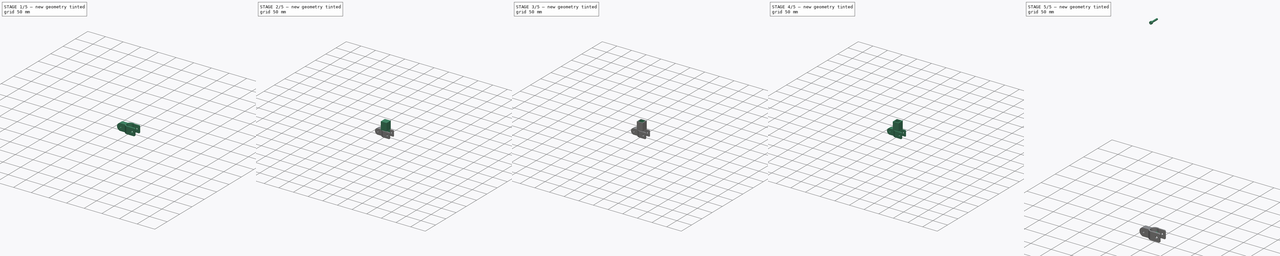
[diagram: build sequence overview — one tinted view per stage of 5, left to right]
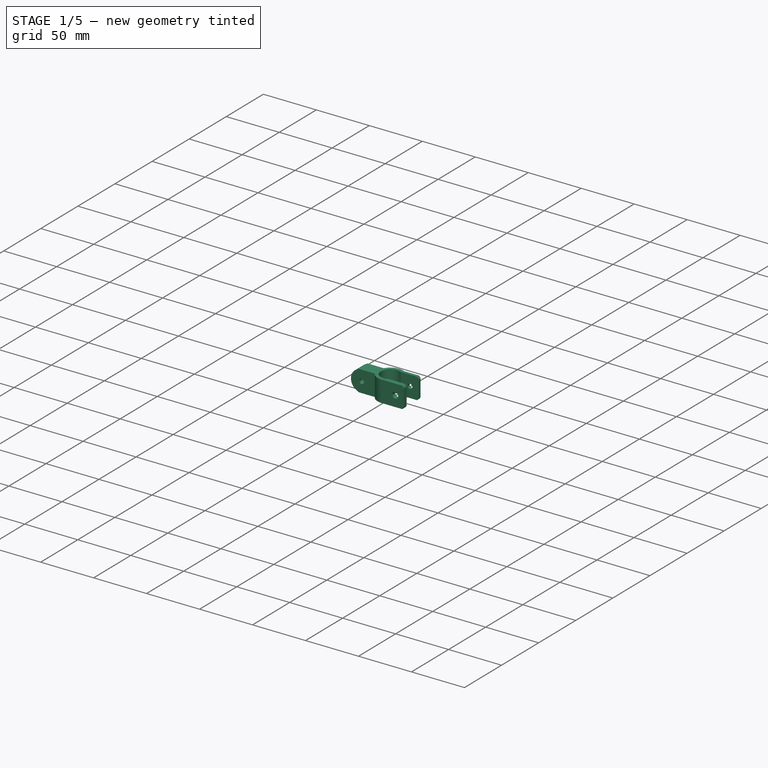
[diagram: stage 1 of 5 — iso view after this stage's code; geometry added in this stage tinted green]
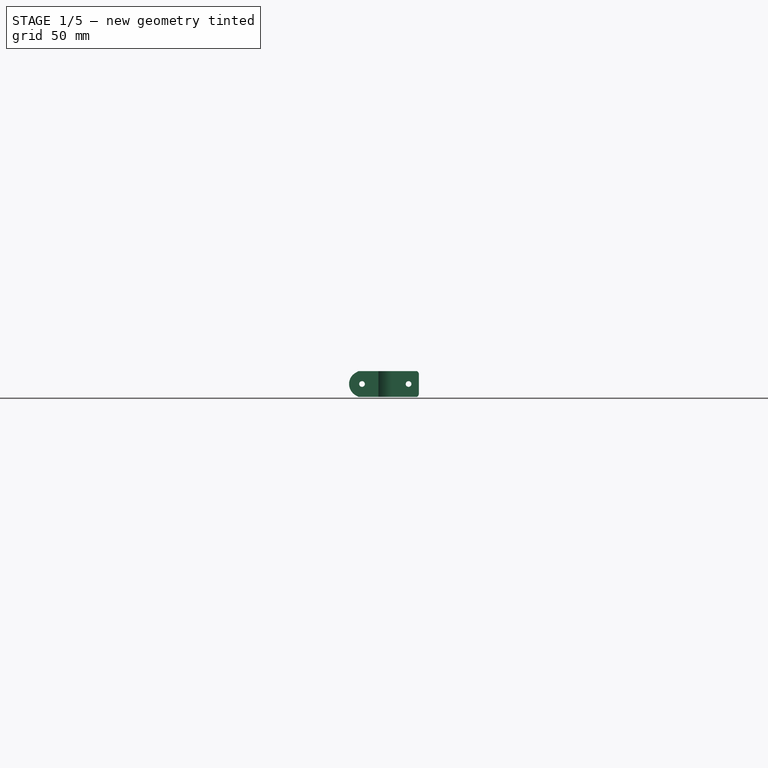
[diagram: stage 1 of 5 — front view after this stage's code; geometry added in this stage tinted green]
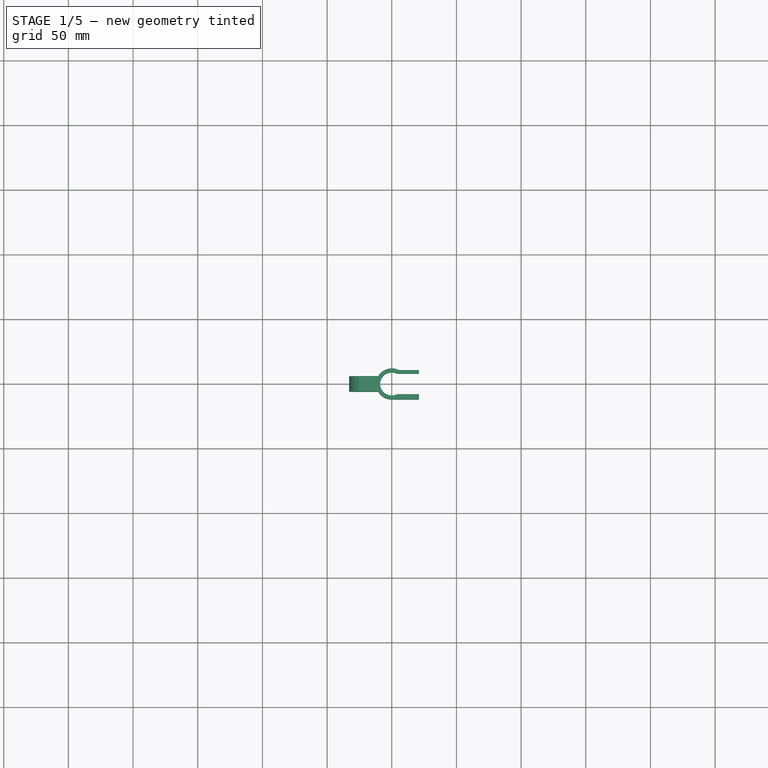
[diagram: stage 1 of 5 — top view after this stage's code; geometry added in this stage tinted green]
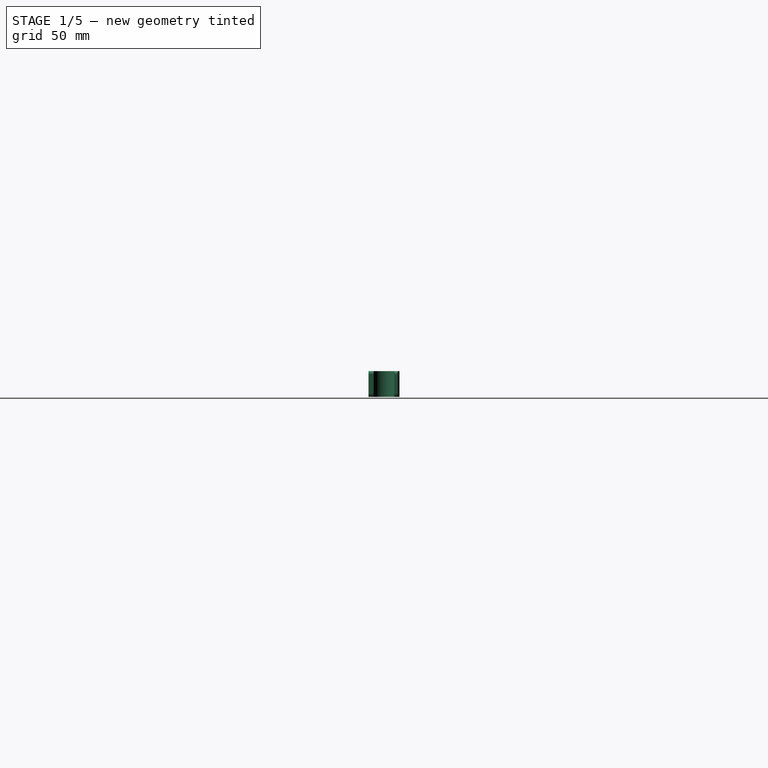
[diagram: stage 1 of 5 — right view after this stage's code; geometry added in this stage tinted green]
FCSTD DOCUMENT  (FreeCAD 0.21RUnknown)
Label: BracePole
License: All rights reserved
LicenseURL: http://en.wikipedia.org/wiki/All_rights_reserved
objects: PartDesign::CoordinateSystem×13, Sketcher::SketchObject×11, App::Link×8, PartDesign::Pocket×5, PartDesign::Body×3, App::DocumentObjectGroup×3, PartDesign::Pad×2, PartDesign::AdditiveCylinder×2, Part::FeaturePython×2, PartDesign::Chamfer×2, PartDesign::AdditiveBox×1, PartDesign::PolarPattern×1, PartDesign::Plane×1, App::FeaturePython×1, App::Part×1
note: 55 computed .brp shape members not serialized (recipe doc carries the construction recipe); baked Part::Feature solids carry a one-line shape summary decoded from their .brp
EXTERNAL_REF file=Common.FCStd obj=Spreadsheet
EXTERNAL_REF file=Common.FCStd obj=Local_CS318
EXTERNAL_REF file=Common.FCStd obj=Body022061
EXTERNAL_REF file=Common.FCStd obj=Local_CS237
EXTERNAL_REF file=Common.FCStd obj=Body005

FEATURE [Sketcher::SketchObject] Sketch194  label="SideArm_PoleClamp_Base_Sketch"
  FullyConstrained = true
  MapMode = 5
  Support = -> [XY_Plane094]
  expr: .Constraints.innerdia = <<Common>>#<<Parameters>>.sec_poledia
  expr: Constraints[23] = <<Common>>#<<Parameters>>.sec_poledia - 2
  expr: Constraints[27] = <<Common>>#<<Parameters>>.sec_sidebolt * 2
  expr: Constraints[31] = <<Common>>#<<Parameters>>.sec_fthick
  expr: Constraints[32] = <<Common>>#<<Parameters>>.pri_bracepivotdia - (<<Common>>#<<Parameters>>.sec_fthick + 1) * 2
  expr: Constraints[36] = <<Common>>#<<Parameters>>.sec_poledia
  expr: Constraints[39] = <<Common>>#<<Parameters>>.sec_sidebolt
  expr: Constraints[42] = <<Common>>#<<Parameters>>.sec_fthick + 1
  expr: Constraints[43] = <<Common>>#<<Parameters>>.pri_bracepivotdia + <<Common>>#<<Parameters>>.sec_fthick + <<Common>>#<<Parameters>>.pri_poledia / 2
  sketch-geometry (17):
    g0: ArcOfCircle CenterX=0 CenterY=0 CenterZ=0 NormalX=0 NormalY=0 NormalZ=1 AngleXU=0 Radius=9 StartAngle=1.09491 EndAngle=5.18827
    g1: LineSegment StartX=4.12311 StartY=8 StartZ=0 EndX=21 EndY=8 EndZ=0
    g2: LineSegment StartX=4.12311 StartY=-8 StartZ=0 EndX=21 EndY=-8 EndZ=0
    g3: LineSegment StartX=21 StartY=8 StartZ=0 EndX=21 EndY=10.6667 EndZ=0
    g4: LineSegment StartX=21 StartY=10.6667 StartZ=0 EndX=5.49747 EndY=10.6667 EndZ=0
    g5: ArcOfCircle CenterX=0 CenterY=0 CenterZ=0 NormalX=0 NormalY=0 NormalZ=1 AngleXU=0 Radius=12 StartAngle=1.09491 EndAngle=2.61799
    g6: LineSegment StartX=-10.3923 StartY=6 StartZ=0 EndX=-33 EndY=6 EndZ=0
    g7: LineSegment StartX=-33 StartY=-6 StartZ=0 EndX=-10.3923 EndY=-6 EndZ=0
    g8: LineSegment StartX=21 StartY=-8 StartZ=0 EndX=21 EndY=-12 EndZ=0
    g9: ArcOfCircle CenterX=0 CenterY=0 CenterZ=0 NormalX=0 NormalY=0 NormalZ=1 AngleXU=0 Radius=12 StartAngle=3.66519 EndAngle=4.71239
    g10: LineSegment StartX=-3.33968e-05 StartY=-12 StartZ=0 EndX=21 EndY=-12 EndZ=0
    g11: GeomPoint X=13 Y=10.6667 Z=0
    g12: LineSegment StartX=0 StartY=0 StartZ=0 EndX=5.49747 EndY=10.6667 EndZ=0
    g13: GeomPoint X=-9 Y=0 Z=0
    g14: Circle CenterX=0 CenterY=0 CenterZ=0 NormalX=0 NormalY=0 NormalZ=1 AngleXU=0 Radius=9
    g15: GeomPoint X=9 Y=0 Z=0
    g16: LineSegment StartX=-33 StartY=6 StartZ=0 EndX=-33 EndY=-6 EndZ=0
  constraints (44):
    c: Coincident(g0,g-1)
    c: Diameter(g0) = 18  'innerdia'
    c: Coincident(g1,g0)
    c: Horizontal(g1)
    c: Coincident(g2,g0)
    c: Horizontal(g2)
    c: Coincident(g3,g1)
    c: Vertical(g3)
    c: Horizontal(g4)
    c: Coincident(g5,g0)
    c: Coincident(g5,g4)
    c: Coincident(g6,g5)
    c: Horizontal(g6)
    c: Horizontal(g7)
    c: Coincident(g8,g2)
    c: Vertical(g8)
    c: Coincident(g9,g0)
    c: Coincident(g9,g7)
    c: Coincident(g10,g9)
    c: Horizontal(g10)
    c: Equal(g9,g5)
    c: Symmetric(g6,g7,g-1)
    c: Symmetric(g1,g2,g-1)
    c: DistanceY(g2,g1) = 16
    c: Coincident(g3,g4)
    c: Coincident(g8,g10)
    c: PointOnObject(g11,g4)
    c: DistanceX(g11,g3) = 8
    c: Coincident(g12,g0)
    c: Coincident(g12,g4)
    c: PointOnObject(g0,g12)
    c: Distance(g0,g4) = 3
    c: DistanceY(g7,g6) = 12
    c: PointOnObject(g13,g0)
    c: PointOnObject(g13,g-1)
    c: Coincident(g14,g0)
    c: Diameter(g14) = 18
    c: PointOnObject(g15,g14)
    c: PointOnObject(g15,g-1)
    c: DistanceX(g15,g11) = 4
    c: Coincident(g16,g6)
    c: Coincident(g16,g7)
    c: DistanceY(g8,g8) = 4
    c: DistanceX(g6,g0) = 33
FEATURE [PartDesign::Pad] Pad048  label="SideArm_PoleClamp_Base"
  Direction = (0,0,1)
  Length = 20
  Length2 = 10
  Midplane = true
  Profile = -> Sketch194
  Type = 0
  expr: Length = <<Common>>#<<Parameters>>.pri_bracepivotdia
FEATURE [Sketcher::SketchObject] Sketch195  label="SideArm_PoleClamp_Pivot_Sketch"
  ExternalGeometry = -> [Pad048]
  FullyConstrained = true
  MapMode = 5
  Placement = pos=(0,0,0) rot=(1,0,0;1.5708rad)
  Support = -> [XZ_Plane095]
  expr: Constraints[11] = <<Common>>#<<Parameters>>.pri_bracepivotdia
  expr: Constraints[14] = <<Common>>#<<Parameters>>.sec_sidebolt * 1.1
  expr: Constraints[45] = <<Common>>#<<Parameters>>.pri_fillet
  expr: Constraints[67] = <<Common>>#<<Parameters>>.pri_fillet
  sketch-geometry (28):
    g0: ArcOfCircle CenterX=-23 CenterY=0 CenterZ=0 NormalX=0 NormalY=0 NormalZ=1 AngleXU=0 Radius=10 StartAngle=2.0944 EndAngle=4.18879
    g1: LineSegment StartX=-33 StartY=10 StartZ=0 EndX=21 EndY=10 EndZ=0
    g2: LineSegment StartX=-33 StartY=-10 StartZ=0 EndX=21 EndY=-10 EndZ=0
    g3: LineSegment StartX=-25.6795 StartY=-10 StartZ=0 EndX=-25.6795 EndY=-11 EndZ=0
    g4: LineSegment StartX=-25.6795 StartY=-11 StartZ=0 EndX=-34 EndY=-11 EndZ=0
    g5: LineSegment StartX=-34 StartY=-11 StartZ=0 EndX=-34 EndY=11 EndZ=0
    g6: LineSegment StartX=-34 StartY=11 StartZ=0 EndX=-25.6795 EndY=11 EndZ=0
    g7: LineSegment StartX=-25.6795 StartY=11 StartZ=0 EndX=-25.6795 EndY=10 EndZ=0
    g8: GeomPoint X=-33 Y=0 Z=0
    g9: Circle CenterX=13 CenterY=0 CenterZ=0 NormalX=0 NormalY=0 NormalZ=1 AngleXU=0 Radius=2.2
    g10: ArcOfCircle CenterX=18.5 CenterY=7.5 CenterZ=0 NormalX=0 NormalY=0 NormalZ=1 AngleXU=0 Radius=2.5 StartAngle=0 EndAngle=0.785398
    g11: ArcOfCircle CenterX=18.5 CenterY=-7.5 CenterZ=0 NormalX=0 NormalY=0 NormalZ=1 AngleXU=0 Radius=2.5 StartAngle=5.49779 EndAngle=6.28319
    g12: LineSegment StartX=18.5 StartY=10 StartZ=0 EndX=18.5 EndY=-10 EndZ=0
    g13: LineSegment StartX=18.5 StartY=-7.5 StartZ=0 EndX=21 EndY=-7.5 EndZ=0
    g14: LineSegment StartX=18.5 StartY=7.5 StartZ=0 EndX=21 EndY=7.5 EndZ=0
    g15: LineSegment StartX=19.5355 StartY=10 StartZ=0 EndX=19.5355 EndY=11 EndZ=0
    g16: LineSegment StartX=19.5355 StartY=11 StartZ=0 EndX=22 EndY=11 EndZ=0
    g17: LineSegment StartX=22 StartY=11 StartZ=0 EndX=22 EndY=-11 EndZ=0
    g18: LineSegment StartX=22 StartY=-11 StartZ=0 EndX=19.5355 EndY=-11 EndZ=0
    g19: LineSegment StartX=19.5355 StartY=-11 StartZ=0 EndX=19.5355 EndY=-10 EndZ=0
    g20: LineSegment StartX=21 StartY=-7.5 StartZ=0 EndX=21 EndY=7.5 EndZ=0
    g21: LineSegment StartX=-33 StartY=0 StartZ=0 EndX=-23 EndY=0 EndZ=0
    g22: Circle CenterX=-23 CenterY=0 CenterZ=0 NormalX=0 NormalY=0 NormalZ=1 AngleXU=0 Radius=2.2
    g23: LineSegment StartX=-28 StartY=-8.66025 StartZ=0 EndX=-25.6795 EndY=-10 EndZ=0
    g24: LineSegment StartX=-28 StartY=8.66025 StartZ=0 EndX=-25.6795 EndY=10 EndZ=0
    g25: LineSegment StartX=-25.6795 StartY=10 StartZ=0 EndX=-25.6795 EndY=-10 EndZ=0
    g26: LineSegment StartX=19.5355 StartY=10 StartZ=0 EndX=20.2678 EndY=9.26777 EndZ=0
    g27: LineSegment StartX=19.5355 StartY=-10 StartZ=0 EndX=20.2678 EndY=-9.26777 EndZ=0
  constraints (77):
    c: PointOnObject(g3,g2)
    c: Coincident(g4,g3)
    c: Horizontal(g4)
    c: Coincident(g5,g4)
    c: Vertical(g5)
    c: Coincident(g6,g5)
    c: Horizontal(g6)
    c: Coincident(g7,g6)
    c: Vertical(g7)
    c: Vertical(g3)
    c: Equal(g3,g7)
    c: Diameter(g0) = 20
    c: DistanceY(g7,g7) = 1
    c: DistanceX(g5,g1) = 1
    c: Diameter(g9) = 4.4
    c: Vertical(g12)
    c: Coincident(g13,g11)
    c: Coincident(g13,g11)
    c: Coincident(g14,g10)
    c: Coincident(g14,g10)
    c: Horizontal(g14)
    c: PointOnObject(g10,g12)
    c: PointOnObject(g11,g12)
    c: Horizontal(g13)
    c: Vertical(g15)
    c: Coincident(g16,g15)
    c: Horizontal(g16)
    c: Coincident(g17,g16)
    c: Vertical(g17)
    c: Coincident(g18,g17)
    c: Horizontal(g18)
    c: Vertical(g19)
    c: Coincident(g20,g11)
    c: Coincident(g20,g10)
    c: Equal(g15,g19)
    c: PointOnObject(g6,g16)
    c: DistanceX(g1,g16) = 1
    c: Coincident(g18,g19)
    c: PointOnObject(g8,g0)
    c: Coincident(g21,g8)
    c: Coincident(g21,g0)
    c: Horizontal(g21)
    c: PointOnObject(g3,g7)
    c: PointOnObject(g9,g-1)
    c: DistanceX(g9,g1) = 8
    c: Radius(g10) = 2.5
    c: Coincident(g1,g-3)
    c: Coincident(g2,g-3)
    c: Coincident(g2,g-4)
    c: Coincident(g1,g-4)
    c: PointOnObject(g11,g-3)
    c: PointOnObject(g10,g-3)
    c: PointOnObject(g8,g-4)
    c: Coincident(g22,g0)
    c: Equal(g22,g9)
    c: DistanceX(g0,g-1) = 23  'Clamp_Pivot_Distance'
    c: PointOnObject(g0,g-1)
    c: Tangent(g24,g0) = 1.5708
    c: Tangent(g23,g0) = -1.5708
    c: Tangent(g27,g11) = -1.5708
    c: Tangent(g26,g10) = 1.5708
    c: PointOnObject(g12,g2)
    c: Coincident(g19,g27)
    c: PointOnObject(g12,g1)
    c: Coincident(g15,g26)
    c: Angle(g1,g26) = 2.35619
    c: PointOnObject(g15,g1)
    c: DistanceY(g10,g12) = 2.5
    c: PointOnObject(g19,g2)
    c: Equal(g27,g26)
    c: PointOnObject(g18,g15)
    c: Coincident(g7,g24)
    c: Coincident(g7,g25)
    c: PointOnObject(g7,g1)
    c: Coincident(g3,g23)
    c: Angle(g2,g23) = 2.61799
    c: Coincident(g25,g3)
FEATURE [PartDesign::Pocket] Pocket126  label="SideArm_PoleClamp_Pivot"
  BaseFeature = -> Pad048
  Direction = (0,1,2e-16)
  Length = 5
  Length2 = 5
  Midplane = true
  Profile = -> Sketch195
  Type = 1
FEATURE [PartDesign::CoordinateSystem] Local_CS317  label="LCSp_SideArm_Pivot_OuterTilt"
  AttacherType = Attacher::AttachEngine3D
  AttachmentOffset = pos=(0,0,0) rot=(0,1,0;0.440587rad)
  MapMode = 5
  Placement = pos=(0,0,0) rot=(0,1,0;3.58218rad)
  Support = -> [Local_CS315]
  expr: .AttachmentOffset.Rotation.Pitch = <<Common>>#<<Parameters>>.pri_bracetilt
FEATURE [Sketcher::SketchObject] Sketch268  label="SideArm_Outer_SupportA_Sketch"
  AttachmentOffset = pos=(0,0,14.5) rot=(0,0,1;0rad)
  FullyConstrained = true
  MapMode = 5
  Placement = pos=(0,0,14.5) rot=(0,0,1;0rad)
  Support = -> [XY_Plane113]
  expr: .AttachmentOffset.Base.z = <<Common>>#<<Parameters>>.pri_bracepivotdia / 2 + <<Common>>#<<Parameters>>.sec_fthick * 1.5 + (20 - <<Common>>#<<Parameters>>.pri_bracepivotdia) / 2
  sketch-geometry (4):
    g0: LineSegment StartX=-2.25 StartY=2.25 StartZ=0 EndX=2.25 EndY=2.25 EndZ=0
    g1: LineSegment StartX=2.25 StartY=2.25 StartZ=0 EndX=2.25 EndY=-2.25 EndZ=0
    g2: LineSegment StartX=2.25 StartY=-2.25 StartZ=0 EndX=-2.25 EndY=-2.25 EndZ=0
    g3: LineSegment StartX=-2.25 StartY=-2.25 StartZ=0 EndX=-2.25 EndY=2.25 EndZ=0
  constraints (10):
    c: Coincident(g0,g1)
    c: Coincident(g1,g2)
    c: Coincident(g2,g3)
    c: Coincident(g3,g0)
    c: Horizontal(g0)
    c: Vertical(g3)
    c: Symmetric(g1,g0,g-1)
    c: Symmetric(g1,g2,g-2)
    c: Equal(g0,g3)
    c: DistanceY(g1,g1) = 4.5
FEATURE [Sketcher::SketchObject] Sketch269  label="SideArm_Outer_SupportB_Sketch"
  AttachmentOffset = pos=(0,0,14.75) rot=(0,0,1;0rad)
  FullyConstrained = true
  MapMode = 5
  Placement = pos=(0,0,14.75) rot=(0,0,1;0rad)
  Support = -> [XY_Plane113]
  expr: .AttachmentOffset.Base.z = <<Common>>#<<Parameters>>.pri_bracepivotdia / 2 + <<Common>>#<<Parameters>>.sec_fthick * 1.5 + (20 - <<Common>>#<<Parameters>>.pri_bracepivotdia) / 2 + 0.25
  expr: Constraints[8] = <<Common>>#<<Parameters>>.pri_bracepole + <<Common>>#<<Parameters>>.pri_tol
  sketch-geometry (13):
    g0: LineSegment StartX=-7.75 StartY=7.75 StartZ=0 EndX=7.75 EndY=7.75 EndZ=0
    g1: LineSegment StartX=7.75 StartY=7.75 StartZ=0 EndX=7.75 EndY=-7.75 EndZ=0
    g2: LineSegment StartX=7.75 StartY=-7.75 StartZ=0 EndX=-7.75 EndY=-7.75 EndZ=0
    g3: LineSegment StartX=-7.75 StartY=-7.75 StartZ=0 EndX=-7.75 EndY=7.75 EndZ=0
    g4: LineSegment StartX=-6.75 StartY=2.25 StartZ=0 EndX=2.25 EndY=2.25 EndZ=0
    g5: LineSegment StartX=-2.25 StartY=-2.25 StartZ=0 EndX=6.75 EndY=-2.25 EndZ=0
    g6: LineSegment StartX=-3.25 StartY=7.75 StartZ=0 EndX=7.75 EndY=-3.25 EndZ=0
    g7: LineSegment StartX=-7.75 StartY=3.25 StartZ=0 EndX=3.25 EndY=-7.75 EndZ=0
    g8: GeomPoint X=0 Y=2.25 Z=0
    g9: GeomPoint X=0 Y=-2.25 Z=0
    g10: LineSegment StartX=-2.25 StartY=-2.25 StartZ=0 EndX=2.25 EndY=2.25 EndZ=0
    g11: LineSegment StartX=-6.75 StartY=2.25 StartZ=0 EndX=-2.25 EndY=-2.25 EndZ=0
    g12: LineSegment StartX=2.25 StartY=2.25 StartZ=0 EndX=6.75 EndY=-2.25 EndZ=0
  constraints (35):
    c: Coincident(g0,g1)
    c: Coincident(g1,g2)
    c: Coincident(g2,g3)
    c: Coincident(g3,g0)
    c: Horizontal(g0)
    c: Vertical(g3)
    c: Symmetric(g0,g1,g-1)
    c: Symmetric(g1,g2,g-2)
    c: DistanceX(g2,g2) = 15.5
    c: Equal(g1,g2)
    c: Horizontal(g4)
    c: Horizontal(g5)
    c: PointOnObject(g6,g0)
    c: PointOnObject(g6,g1)
    c: PointOnObject(g7,g3)
    c: PointOnObject(g7,g2)
    c: PointOnObject(g8,g4)
    c: PointOnObject(g9,g5)
    c: PointOnObject(g9,g-2)
    c: Symmetric(g8,g9,g-1)
    c: DistanceY(g9,g8) = 4.5
    c: Coincident(g10,g5)
    c: Coincident(g10,g4)
    c: PointOnObject(g-1,g10)
    c: Angle(g10) = 0.785398
    c: PointOnObject(g5,g7)
    c: Perpendicular(g10,g7)
    c: PointOnObject(g4,g6)
    c: Perpendicular(g10,g6)
    c: PointOnObject(g4,g7)
    c: PointOnObject(g5,g6)
    c: Coincident(g11,g4)
    c: Coincident(g11,g5)
    c: Coincident(g12,g4)
    c: Coincident(g12,g5)
FEATURE [Sketcher::SketchObject] Sketch270  label="SideArm_Outer_SupportC_Sketch"
  AttachmentOffset = pos=(0,0,15) rot=(0,0,1;0rad)
  FullyConstrained = true
  MapMode = 5
  Placement = pos=(0,0,15) rot=(0,0,1;0rad)
  Support = -> [XY_Plane113]
  expr: .AttachmentOffset.Base.z = <<Common>>#<<Parameters>>.pri_bracepivotdia / 2 + <<Common>>#<<Parameters>>.sec_fthick * 1.5 + (20 - <<Common>>#<<Parameters>>.pri_bracepivotdia) / 2 + 0.5
  expr: Constraints[19] = <<Common>>#<<Parameters>>.pri_bracepole + <<Common>>#<<Parameters>>.pri_tol
  sketch-geometry (13):
    g0: LineSegment StartX=-2.25 StartY=2.25 StartZ=0 EndX=2.25 EndY=2.25 EndZ=0
    g1: LineSegment StartX=2.25 StartY=2.25 StartZ=0 EndX=2.25 EndY=-2.25 EndZ=0
    g2: LineSegment StartX=2.25 StartY=-2.25 StartZ=0 EndX=-2.25 EndY=-2.25 EndZ=0
    g3: LineSegment StartX=-2.25 StartY=-2.25 StartZ=0 EndX=-2.25 EndY=2.25 EndZ=0
    g4: LineSegment StartX=-7.75 StartY=7.75 StartZ=0 EndX=7.75 EndY=7.75 EndZ=0
    g5: LineSegment StartX=7.75 StartY=7.75 StartZ=0 EndX=7.75 EndY=-7.75 EndZ=0
    g6: LineSegment StartX=7.75 StartY=-7.75 StartZ=0 EndX=-7.75 EndY=-7.75 EndZ=0
    g7: LineSegment StartX=-7.75 StartY=-7.75 StartZ=0 EndX=-7.75 EndY=7.75 EndZ=0
    g8: LineSegment StartX=-3.25 StartY=7.75 StartZ=0 EndX=7.75 EndY=-3.25 EndZ=0
    g9: LineSegment StartX=-7.75 StartY=3.25 StartZ=0 EndX=3.25 EndY=-7.75 EndZ=0
    g10: LineSegment StartX=-2.25 StartY=-2.25 StartZ=0 EndX=2.25 EndY=2.25 EndZ=0
    g11: LineSegment StartX=-7.75 StartY=3.25 StartZ=0 EndX=-3.25 EndY=7.75 EndZ=0
    g12: LineSegment StartX=3.25 StartY=-7.75 StartZ=0 EndX=7.75 EndY=-3.25 EndZ=0
  constraints (34):
    c: Coincident(g0,g1)
    c: Coincident(g1,g2)
    c: Coincident(g2,g3)
    c: Coincident(g3,g0)
    c: Horizontal(g0)
    c: Vertical(g3)
    c: Symmetric(g2,g1,g-2)
    c: Symmetric(g1,g0,g-1)
    c: Equal(g1,g2)
    c: DistanceY(g1,g1) = 4.5
    c: Coincident(g4,g5)
    c: Coincident(g5,g6)
    c: Coincident(g6,g7)
    c: Coincident(g7,g4)
    c: Horizontal(g4)
    c: Vertical(g7)
    c: Symmetric(g5,g6,g-2)
    c: Symmetric(g4,g5,g-1)
    c: Equal(g5,g6)
    c: DistanceY(g5,g5) = 15.5
    c: PointOnObject(g8,g4)
    c: PointOnObject(g8,g5)
    c: PointOnObject(g9,g7)
    c: PointOnObject(g9,g6)
    c: PointOnObject(g2,g9)
    c: PointOnObject(g0,g8)
    c: Coincident(g10,g2)
    c: Coincident(g10,g0)
    c: Perpendicular(g8,g10)
    c: Perpendicular(g9,g10)
    c: Coincident(g11,g9)
    c: Coincident(g11,g8)
    c: Coincident(g12,g9)
    c: Coincident(g12,g8)
FEATURE [Sketcher::SketchObject] Sketch271  label="SideArm_Outer_Nut_Sketch"
  AttachmentOffset = pos=(0,0,10) rot=(0,0,1;0rad)
  FullyConstrained = true
  MapMode = 5
  Placement = pos=(0,-10,-2.2e-15) rot=(1,0,0;1.5708rad)
  Support = -> [XZ_Plane113]
  expr: Constraints[1] = <<Common>>#<<Parameters>>.acc_M4Bore
  sketch-geometry (1):
    g0: Circle CenterX=0 CenterY=0 CenterZ=0 NormalX=0 NormalY=0 NormalZ=1 AngleXU=0 Radius=2.8
  constraints (2):
    c: Coincident(g0,g-1)
    c: Diameter(g0) = 5.6
FEATURE [Sketcher::SketchObject] Sketch272  label="SideArm_Outer_Counterbore_Sketch"
  AttachmentOffset = pos=(0,0,-10) rot=(0,0,1;0rad)
  FullyConstrained = true
  MapMode = 5
  Placement = pos=(0,10,2.2e-15) rot=(1,0,0;1.5708rad)
  Support = -> [XZ_Plane113]
  sketch-geometry (1):
    g0: Circle CenterX=0 CenterY=0 CenterZ=0 NormalX=0 NormalY=0 NormalZ=1 AngleXU=0 Radius=4.5
  constraints (2):
    c: Coincident(g0,g-1)
    c: Radius(g0) = 4.5
FEATURE [PartDesign::Plane] DatumPlane059  label="DatumPlane_SideClamp_Nut"
  Length = 60.7703
  MapMode = 11
  Placement = pos=(13,-12,-2.7e-15) rot=(0.57735,-0.57735,0.57735;2.0944rad)
  ResizeMode = 0
  Support = -> [Pocket126]
  Width = 68.7703
FEATURE [Sketcher::SketchObject] Sketch238  label="SideArm_PoleClamp_BraceNut_Sketch"
  FullyConstrained = true
  MapMode = 5
  Placement = pos=(13,-12,-2.7e-15) rot=(-0.57735,0.57735,-0.57735;4.18879rad)
  Support = -> [DatumPlane059]
  expr: Constraints[1] = <<Common>>#<<Parameters>>.acc_M4Bore
  sketch-geometry (1):
    g0: Circle CenterX=0 CenterY=0 CenterZ=0 NormalX=0 NormalY=0 NormalZ=1 AngleXU=0 Radius=2.8
  constraints (2):
    c: Coincident(g0,g-1)
    c: Diameter(g0) = 5.6
FEATURE [PartDesign::Pocket] Pocket188  label="SideArm_PoleClamp_BraceNut"
  BaseFeature = -> Pocket126
  Direction = (0,1,0)
  Length = 4
  Length2 = 100
  Profile = -> Sketch238
  Type = 0
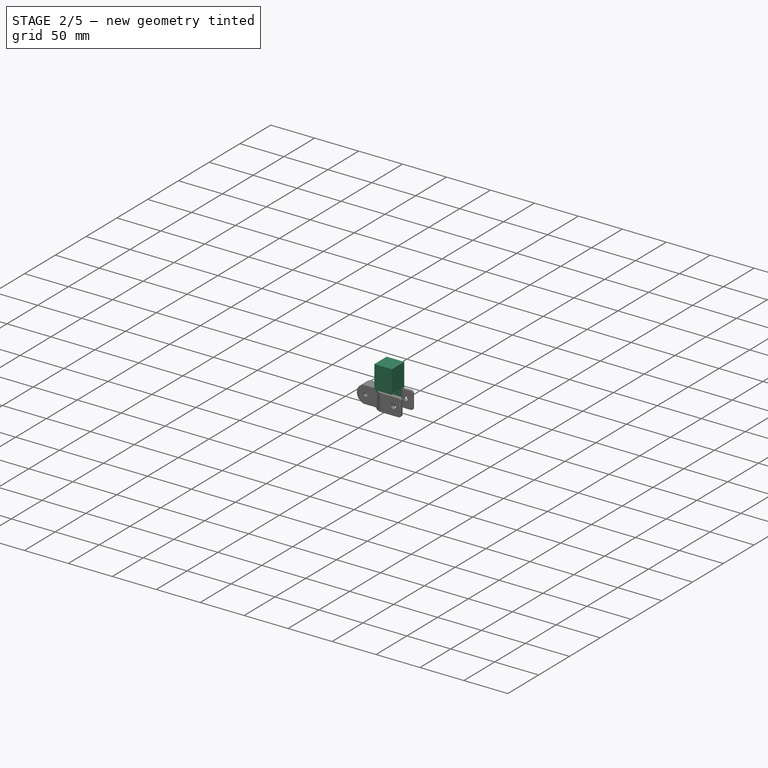
[diagram: stage 2 of 5 — iso view after this stage's code; geometry added in this stage tinted green]
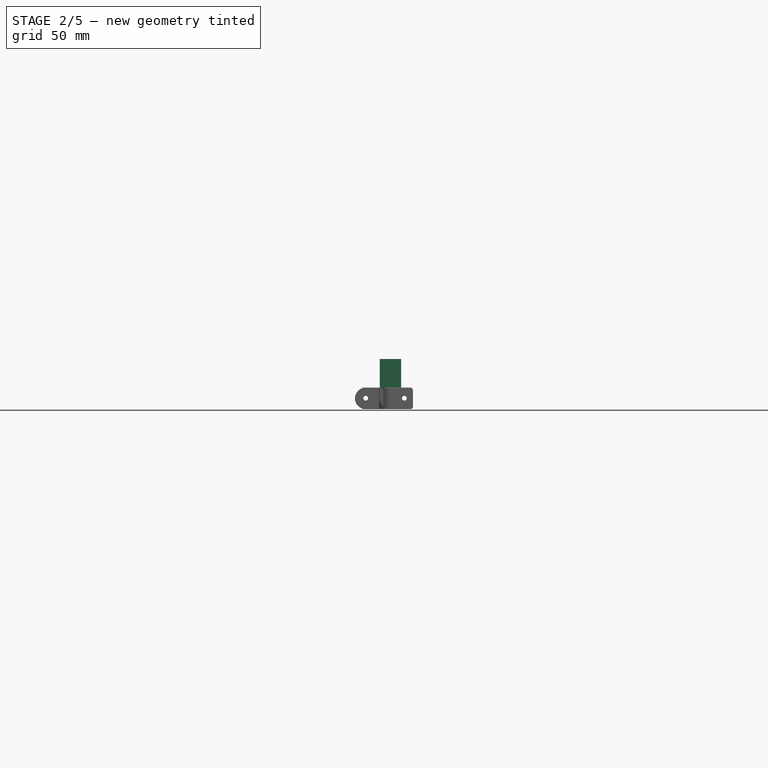
[diagram: stage 2 of 5 — front view after this stage's code; geometry added in this stage tinted green]
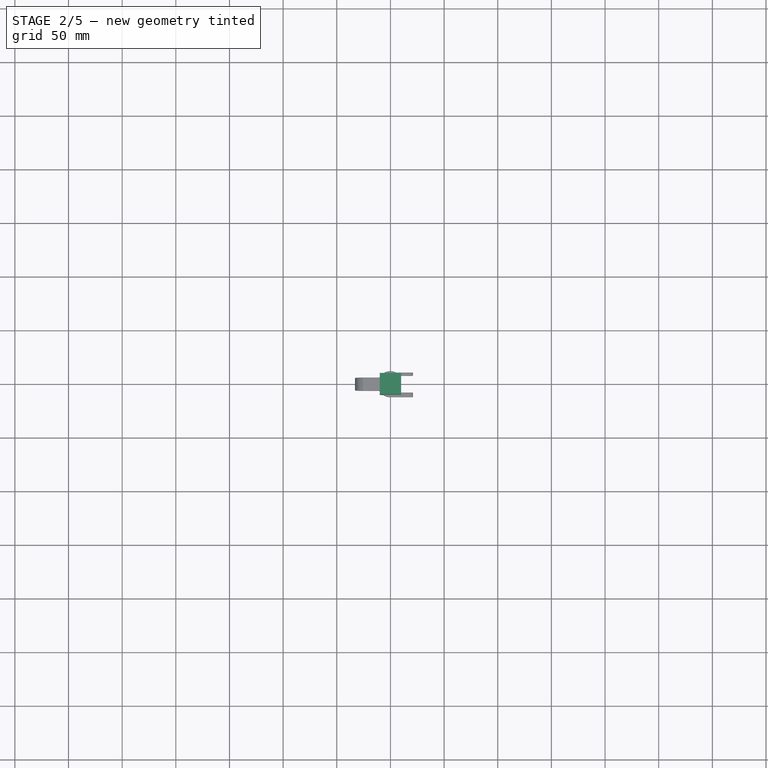
[diagram: stage 2 of 5 — top view after this stage's code; geometry added in this stage tinted green]
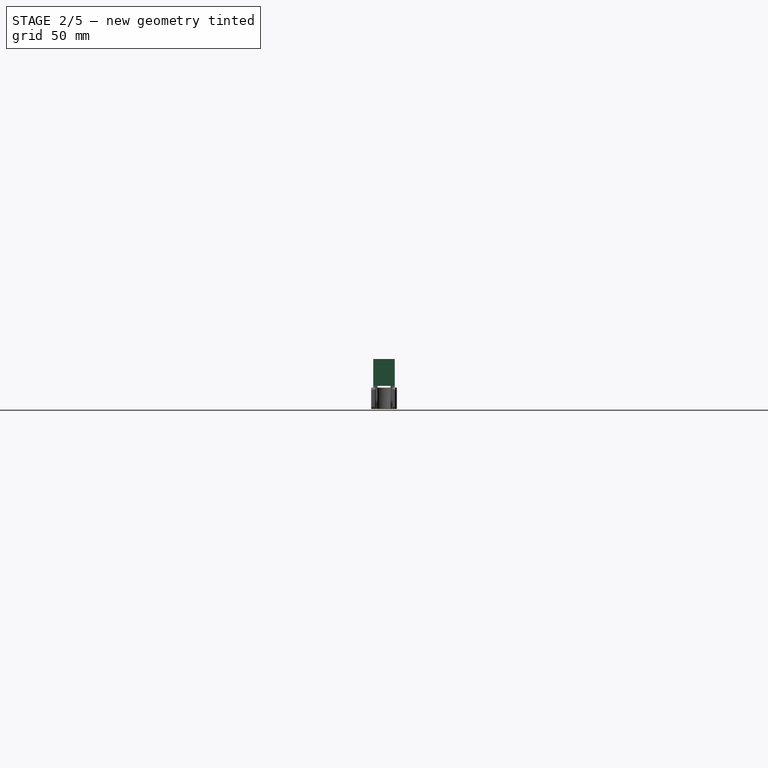
[diagram: stage 2 of 5 — right view after this stage's code; geometry added in this stage tinted green]
FEATURE [PartDesign::CoordinateSystem] Local_CS268  label="LCS_SideClamp_Pivot"
  AttacherType = Attacher::AttachEngine3D
  MapMode = 45
  Placement = pos=(-23,0,1e-16) rot=(0.707107,0,0.707107;3.14159rad)
  Support = -> [Pocket126]
FEATURE [PartDesign::CoordinateSystem] Local_CS269  label="LCS_SideClamp_Bolt"
  AttacherType = Attacher::AttachEngine3D
  MapMode = 11
  Placement = pos=(13,10.6667,2.4e-15) rot=(-0.57735,0.57735,0.57735;2.0944rad)
  Support = -> [Pocket126]
FEATURE [PartDesign::CoordinateSystem] Local_CS310  label="LCSp_SideArm_Pole_Bottom"
  AttacherType = Attacher::AttachEngine3D
  MapMode = 2
  Support = -> [XY_Plane093]
FEATURE [PartDesign::CoordinateSystem] Local_CS311  label="LCSp_SideArm_Pole_Top"
  AttacherType = Attacher::AttachEngine3D
  AttachmentOffset = pos=(0,0,-450) rot=(0,0,1;0rad)
  MapMode = 5
  Placement = pos=(0,0,450) rot=(0,1,0;3.14159rad)
  Support = -> [XY_Plane093]
  expr: .AttachmentOffset.Base.z = -<<Common>>#<<Parameters>>.pri_bracelength
FEATURE [PartDesign::Body] Body022041  label="SideArm_Pole"
  Group = -> [Box003,Local_CS310,Local_CS311]
  Origin = -> Origin094
  Placement = pos=(0,0,15) rot=(0,0,1;0rad)
  Tip = -> Box003
FEATURE [Sketcher::SketchObject] Sketch263  label="SideArm_Outer_YZ_Sketch"
  FullyConstrained = true
  MapMode = 5
  Placement = pos=(0,0,0) rot=(0.57735,0.57735,0.57735;2.0944rad)
  Support = -> [YZ_Plane113]
  expr: Constraints[12] = -<<Common>>#<<Parameters>>.pri_bracepivotdia / 2 - 1
  expr: Constraints[19] = <<Common>>#<<Parameters>>.pri_bracepivotdia / 2 + <<Common>>#<<Parameters>>.sec_fthick / 2
  expr: Constraints[22] = max(<<Common>>#<<Parameters>>.pri_bracepole + <<Common>>#<<Parameters>>.sec_fthick; <<Common>>#<<Parameters>>.pri_bracepivotdia + 1) + 2
  expr: Constraints[23] = <<Common>>#<<Parameters>>.pri_bracepivotdia
  expr: Constraints[35] = <<Common>>#<<Parameters>>.sec_fthick + 1
  sketch-geometry (14):
    g0: LineSegment StartX=-6 StartY=11.5 StartZ=0 EndX=-6 EndY=-11 EndZ=0
    g1: LineSegment StartX=-6 StartY=-11 StartZ=0 EndX=6 EndY=-11 EndZ=0
    g2: LineSegment StartX=6 StartY=-11 StartZ=0 EndX=6 EndY=11.5 EndZ=0
    g3: LineSegment StartX=10 StartY=11.5 StartZ=0 EndX=11.5 EndY=13 EndZ=0
    g4: LineSegment StartX=11.5 StartY=13 StartZ=0 EndX=11.5 EndY=-13 EndZ=0
    g5: LineSegment StartX=11.5 StartY=-13 StartZ=0 EndX=-11.5 EndY=-13 EndZ=0
    g6: LineSegment StartX=-11.5 StartY=-13 StartZ=0 EndX=-11.5 EndY=13 EndZ=0
    g7: LineSegment StartX=-11.5 StartY=13 StartZ=0 EndX=-10 EndY=11.5 EndZ=0
    g8: LineSegment StartX=-6 StartY=11.5 StartZ=0 EndX=6 EndY=11.5 EndZ=0
    g9: LineSegment StartX=-11.5 StartY=13 StartZ=0 EndX=11.5 EndY=13 EndZ=0
    g10: LineSegment StartX=-10 StartY=11.5 StartZ=0 EndX=-10 EndY=-11 EndZ=0
    g11: LineSegment StartX=10 StartY=11.5 StartZ=0 EndX=10 EndY=-11 EndZ=0
    g12: LineSegment StartX=10 StartY=-11 StartZ=0 EndX=6 EndY=-11 EndZ=0
    g13: LineSegment StartX=-10 StartY=-11 StartZ=0 EndX=-6 EndY=-11 EndZ=0
  constraints (39):
    c: Vertical(g0)
    c: Coincident(g1,g0)
    c: Horizontal(g1)
    c: Coincident(g2,g1)
    c: Vertical(g2)
    c: Coincident(g4,g3)
    c: Vertical(g4)
    c: Coincident(g5,g4)
    c: Horizontal(g5)
    c: Coincident(g6,g5)
    c: Vertical(g6)
    c: Coincident(g7,g6)
    c: DistanceY(g1) = -11
    c: Coincident(g8,g0)
    c: Coincident(g8,g2)
    c: Coincident(g9,g6)
    c: Coincident(g9,g3)
    c: Horizontal(g8)
    c: Equal(g7,g3)
    c: DistanceY(g2) = 11.5
    c: Symmetric(g3,g6,g-2)
    c: DistanceY(g4,g1) = 2
    c: DistanceX(g5,g5) = 23
    c: DistanceX(g7,g3) = 20
    c: Vertical(g10)
    c: Coincident(g11,g3)
    c: Vertical(g11)
    c: Coincident(g12,g11)
    c: Coincident(g12,g2)
    c: Horizontal(g12)
    c: Coincident(g13,g10)
    c: Coincident(g13,g0)
    c: Horizontal(g13)
    c: Coincident(g10,g7)
    c: Equal(g12,g13)
    c: DistanceX(g12,g12) = 4
    c: PointOnObject(g7,g8)
    c: PointOnObject(g3,g8)
    c: Angle(g3,g4) = 0.785398
FEATURE [Sketcher::SketchObject] Sketch264  label="SideArm_Outer_Profile_XZ_Sketch"
  FullyConstrained = true
  MapMode = 5
  Placement = pos=(0,0,0) rot=(1,0,0;1.5708rad)
  Support = -> [XZ_Plane113]
  expr: Constraints[10] = <<Common>>#<<Parameters>>.pri_bracepivotdia
  expr: Constraints[13] = <<Common>>#<<Parameters>>.pri_bracepivotdia / 2 + <<Common>>#<<Parameters>>.sec_fthick / 2
  expr: Constraints[15] = <<Common>>#<<Parameters>>.pri_bracepivotdia
  expr: Constraints[18] = min(<<Common>>#<<Parameters>>.pri_bracepole + <<Common>>#<<Parameters>>.sec_fthick * 2; 20)
  expr: Constraints[22] = max(0.5; abs(20 - <<Common>>#<<Parameters>>.pri_bracepivotdia) / 2)
  expr: Constraints[27] = <<Common>>#<<Parameters>>.sec_sidebolt * 1.1
  sketch-geometry (11):
    g0: ArcOfCircle CenterX=0 CenterY=0 CenterZ=0 NormalX=0 NormalY=0 NormalZ=1 AngleXU=0 Radius=10 StartAngle=3.1416 EndAngle=6.28319
    g1: LineSegment StartX=10 StartY=-2.4e-15 StartZ=0 EndX=10 EndY=11.5 EndZ=0
    g2: LineSegment StartX=-10 StartY=-4.17172e-05 StartZ=0 EndX=-10 EndY=11.5 EndZ=0
    g3: LineSegment StartX=-10 StartY=11.5 StartZ=0 EndX=-10 EndY=12 EndZ=0
    g4: LineSegment StartX=-10 StartY=12 StartZ=0 EndX=-10 EndY=36.5 EndZ=0
    g5: LineSegment StartX=-10 StartY=36.5 StartZ=0 EndX=10 EndY=36.5 EndZ=0
    g6: LineSegment StartX=10 StartY=36.5 StartZ=0 EndX=10 EndY=12 EndZ=0
    g7: LineSegment StartX=10 StartY=12 StartZ=0 EndX=10 EndY=11.5 EndZ=0
    g8: LineSegment StartX=0 StartY=0 StartZ=0 EndX=10 EndY=-2.4e-15 EndZ=0
    g9: LineSegment StartX=-10 StartY=12 StartZ=0 EndX=10 EndY=12 EndZ=0
    g10: Circle CenterX=0 CenterY=0 CenterZ=0 NormalX=0 NormalY=0 NormalZ=1 AngleXU=0 Radius=2.2
  constraints (28):
    c: Coincident(g0,g-1)
    c: Coincident(g1,g0)
    c: Coincident(g3,g2)
    c: Coincident(g4,g3)
    c: Vertical(g4)
    c: Coincident(g5,g4)
    c: Coincident(g6,g5)
    c: Coincident(g7,g6)
    c: Coincident(g7,g1)
    c: Vertical(g6)
    c: Diameter(g0) = 20
    c: Coincident(g8,g0)
    c: Coincident(g8,g0)
    c: DistanceY(g-1,g1) = 11.5
    c: Symmetric(g2,g1,g-2)
    c: DistanceX(g2,g1) = 20
    c: Perpendicular(g1,g8)
    c: Symmetric(g4,g5,g-2)
    c: DistanceX(g5,g5) = 20
    c: Coincident(g9,g3)
    c: Coincident(g9,g6)
    c: Horizontal(g9)
    c: DistanceY(g2,g3) = 0.5
    c: DistanceY(g1,g5) = 25
    c: Coincident(g0,g2)
    c: Vertical(g2)
    c: Coincident(g10,g0)
    c: Diameter(g10) = 4.4
FEATURE [Sketcher::SketchObject] Sketch265  label="SideArm_Outer_Shaft_Sketch"
  AttachmentOffset = pos=(0,0,13) rot=(0,0,1;0rad)
  FullyConstrained = true
  MapMode = 5
  Placement = pos=(0,0,13) rot=(0,0,1;0rad)
  Support = -> [XY_Plane113]
  expr: .AttachmentOffset.Base.z = <<Common>>#<<Parameters>>.pri_bracepivotdia / 2 + <<Common>>#<<Parameters>>.sec_fthick * 1 + (20 - <<Common>>#<<Parameters>>.pri_bracepivotdia) / 2
  expr: Constraints[9] = <<Common>>#<<Parameters>>.pri_bracepole + <<Common>>#<<Parameters>>.pri_tol
  sketch-geometry (4):
    g0: LineSegment StartX=-7.75 StartY=7.75 StartZ=0 EndX=7.75 EndY=7.75 EndZ=0
    g1: LineSegment StartX=7.75 StartY=7.75 StartZ=0 EndX=7.75 EndY=-7.75 EndZ=0
    g2: LineSegment StartX=7.75 StartY=-7.75 StartZ=0 EndX=-7.75 EndY=-7.75 EndZ=0
    g3: LineSegment StartX=-7.75 StartY=-7.75 StartZ=0 EndX=-7.75 EndY=7.75 EndZ=0
  constraints (10):
    c: Coincident(g0,g1)
    c: Coincident(g1,g2)
    c: Coincident(g2,g3)
    c: Coincident(g3,g0)
    c: Horizontal(g2)
    c: Vertical(g3)
    c: Equal(g0,g1)
    c: Symmetric(g0,g0,g-2)
    c: Symmetric(g0,g1,g-1)
    c: DistanceX(g0,g0) = 15.5
FEATURE [PartDesign::CoordinateSystem] Local_CS315  label="LCSp_Sidearm_Pivot_Lower001"
  AttacherType = Attacher::AttachEngine3D
  MapMode = 5
  Placement = pos=(0,0,0) rot=(0,1,0;3.14159rad)
  Support = -> [XY_Plane113]
FEATURE [PartDesign::CoordinateSystem] Local_CS316  label="LCSp_Sidearm_Pivot_LowerTilt001"
  AttacherType = Attacher::AttachEngine3D
  AttachmentOffset = pos=(0,0,0) rot=(0,-1,0;0.440587rad)
  MapMode = 5
  Placement = pos=(0,0,0) rot=(0,1,0;2.70101rad)
  Support = -> [Local_CS315]
  expr: .AttachmentOffset.Rotation.Pitch = -<<Common>>#<<Parameters>>.pri_bracetilt
FEATURE [PartDesign::Pad] Pad066  label="SideArm_Outer_Body"
  Direction = (0,-1,-2e-16)
  Length = 20
  Length2 = 100
  Midplane = true
  Placement = pos=(0,0,0) rot=(1,0,0;1.5708rad)
  Profile = -> Sketch264
  Type = 0
  expr: Length = min(<<Common>>#<<Parameters>>.pri_bracepole + <<Common>>#<<Parameters>>.sec_fthick * 2; 20)
FEATURE [PartDesign::Pocket] Pocket176  label="SideArm_Outer_YZ_Cut"
  BaseFeature = -> Pad066
  Direction = (-1,2e-16,-3e-16)
  Length = 5
  Length2 = 100
  Midplane = true
  Placement = pos=(0,0,0) rot=(1,0,0;1.5708rad)
  Profile = -> Sketch263
  Type = 1
FEATURE [PartDesign::Body] Body022059  label="SideArm_Pivot_Outer_Square"
  Group = -> [Sketch263,Sketch264,Sketch265,Local_CS315,Local_CS316,Pad066,Pocket176,Pocket177,Cylinder014,Cylinder015,PolarPattern005,Local_CS317,Sketch268,Sketch269,Sketch270,Sketch271,Sketch272,Pocket189,Local_CS,Local_CS318,Local_CS319,Chamfer]
  Origin = -> Origin113
  Tip = -> Chamfer
FEATURE [PartDesign::Chamfer] Chamfer001  label="SideArm_Chamfer"
  Angle = 45
  Base = -> Pocket188 [Edge6,Edge37,Edge36,Edge35,Edge32,Edge33,Edge31,Edge29,Edge28,Edge10,Edge12,Edge9,Edge13,Edge14,Edge16,Edge17,Edge18,Edge1,Edge5,Edge4,Edge3,Edge2,Edge26,Edge24,Edge22,Edge20,Edge66,Edge68,Edge67,Edge65,Edge62,Edge58,Edge60,Edge59,Edge57,Edge56,Edge47,Edge42,Edge41,Edge49,+6 more]
  BaseFeature = -> Pocket188
  ChamferType = 0
  FlipDirection = false
  Size = 0.4
  Size2 = 1
  SupportTransform = false
  UseAllEdges = false
FEATURE [PartDesign::Body] Body022042  label="SideArm_PoleClamp"
  Group = -> [Sketch194,Pad048,Sketch195,Pocket126,Local_CS268,Local_CS269,Sketch238,DatumPlane059,Pocket188,Local_CS320,Chamfer001]
  Origin = -> Origin095
  Placement = pos=(113,-113,428.309) rot=(0,0,1;0rad)
  Tip = -> Chamfer001
  expr: .Placement.Base.x = <<Common>>#<<Parameters>>.bolt_x
  expr: .Placement.Base.y = -<<Common>>#<<Parameters>>.bolt_y
  expr: .Placement.Base.z = <<Common>>#<<Parameters>>.pri_braceclamp_z
FEATURE [App::DocumentObjectGroup] Parts
  Group = -> [Body022041,Body022042,Body022059]

RESOLVED EXTERNAL PARTS (link-assembly join: the EXTERNAL_REF files above that resolve inside this repo's crawl, each included once):
---- part Common.FCStd = doc fcstd_f532bfd99702 (72826 chars; too large to inline — full recipe in that document) ----
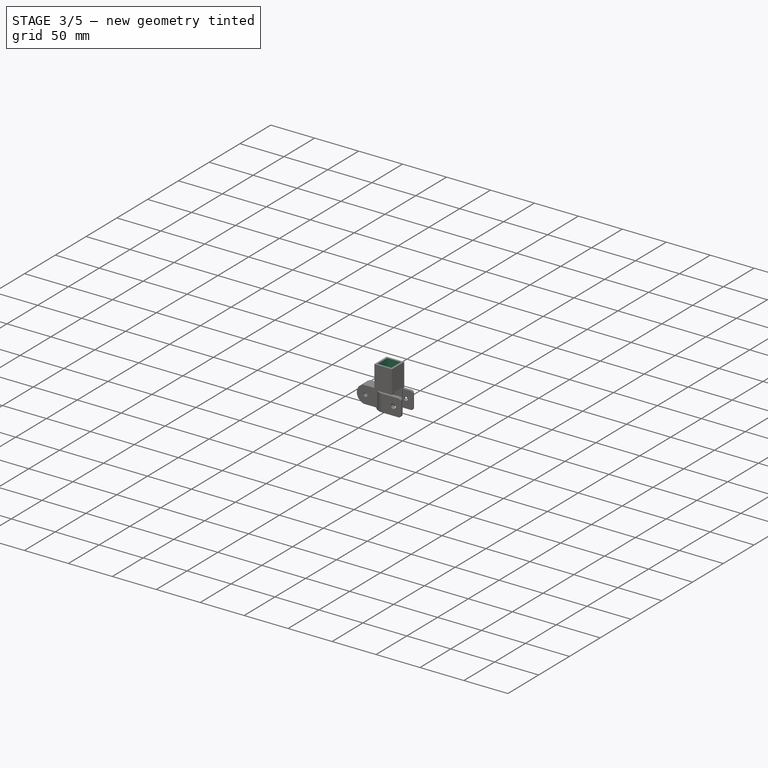
[diagram: stage 3 of 5 — iso view after this stage's code; geometry added in this stage tinted green]
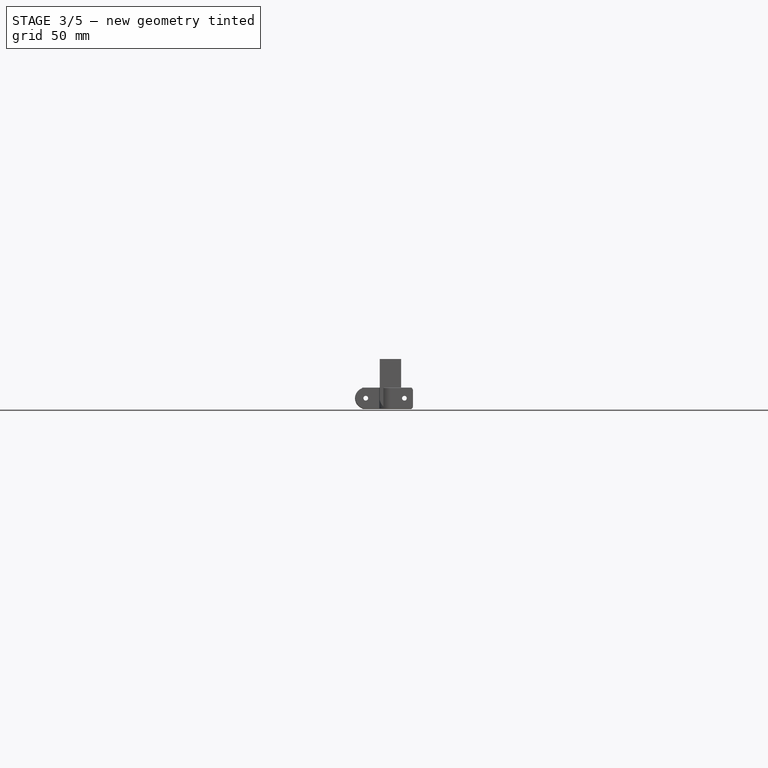
[diagram: stage 3 of 5 — front view after this stage's code; geometry added in this stage tinted green]
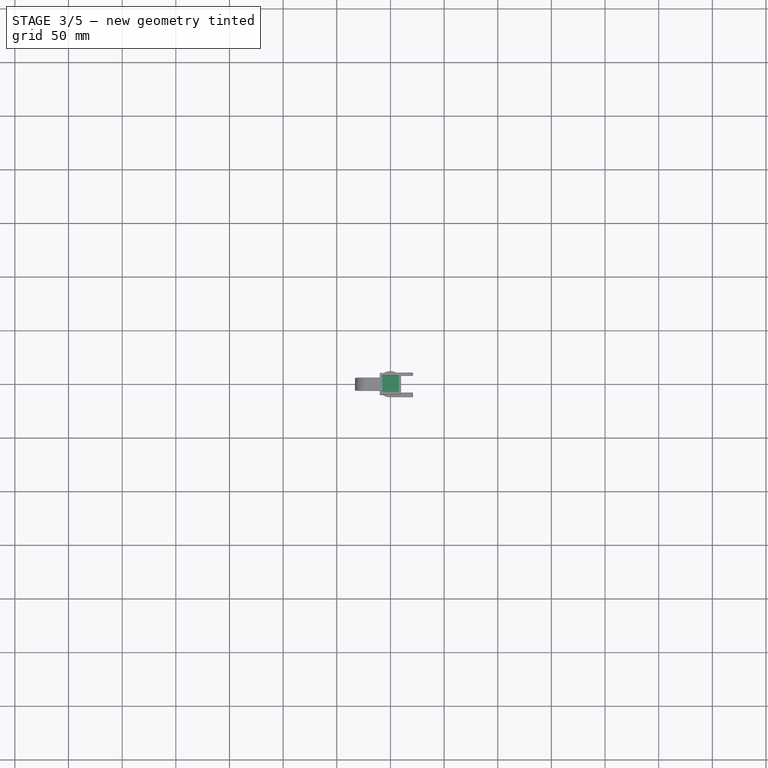
[diagram: stage 3 of 5 — top view after this stage's code; geometry added in this stage tinted green]
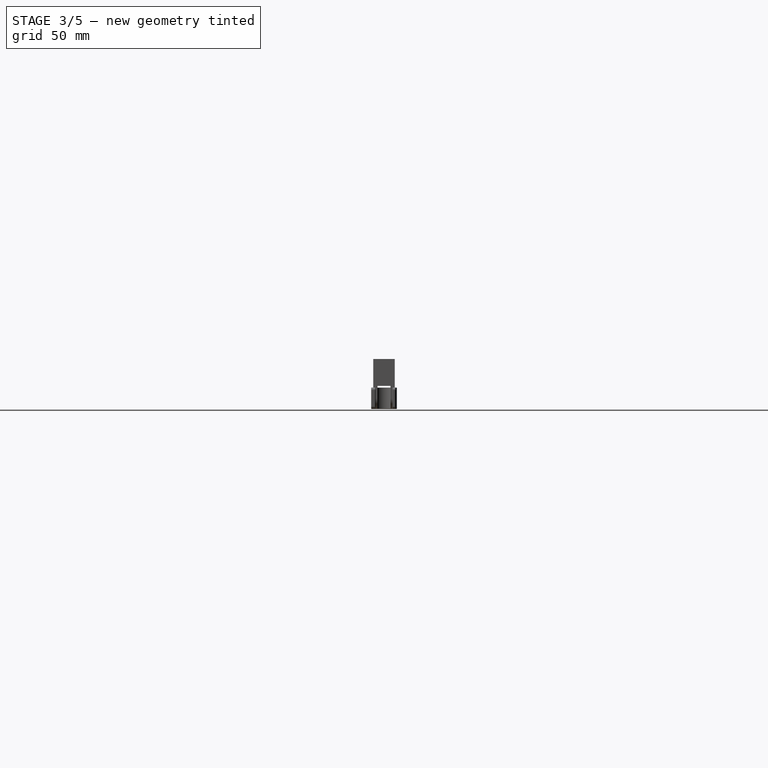
[diagram: stage 3 of 5 — right view after this stage's code; geometry added in this stage tinted green]
FEATURE [PartDesign::Pocket] Pocket177  label="SideArm_Outer_Shaft"
  BaseFeature = -> Pocket176
  Direction = (0,0,-1)
  Length = 5
  Length2 = 100
  Placement = pos=(0,0,0) rot=(1,0,0;1.5708rad)
  Profile = -> Sketch265
  Reversed = true
  Type = 1
FEATURE [PartDesign::AdditiveCylinder] Cylinder014  label="SideArm_Outer_GripCylinderX1"
  Angle = 360
  AttacherType = Attacher::AttachEngine3D
  AttachmentOffset = pos=(7.75,-2.5,15) rot=(0,0,1;0rad)
  BaseFeature = -> Pocket177
  FirstAngle = 0
  Height = 20
  MapMode = 5
  Placement = pos=(7.75,-2.5,15) rot=(0,0,1;0rad)
  Radius = 0.5
  SecondAngle = 0
  Support = -> [XY_Plane113]
  expr: .AttachmentOffset.Base.x = (<<Common>>#<<Parameters>>.pri_bracepole + <<Common>>#<<Parameters>>.pri_tol) / 2
  expr: .AttachmentOffset.Base.z = <<Common>>#<<Parameters>>.pri_bracepivotdia / 2 + <<Common>>#<<Parameters>>.sec_fthick * 1 + (20 - <<Common>>#<<Parameters>>.pri_bracepivotdia) / 2 + 2
FEATURE [PartDesign::AdditiveCylinder] Cylinder015  label="SideArrn_Outer_GripCylinderX2"
  Angle = 360
  AttacherType = Attacher::AttachEngine3D
  AttachmentOffset = pos=(7.75,2.5,15) rot=(0,0,1;0rad)
  BaseFeature = -> Cylinder014
  FirstAngle = 0
  Height = 20
  MapMode = 5
  Placement = pos=(7.75,2.5,15) rot=(0,0,1;0rad)
  Radius = 0.5
  SecondAngle = 0
  Support = -> [XY_Plane113]
  expr: .AttachmentOffset.Base.x = (<<Common>>#<<Parameters>>.pri_bracepole + <<Common>>#<<Parameters>>.pri_tol) / 2
  expr: .AttachmentOffset.Base.z = <<Common>>#<<Parameters>>.pri_bracepivotdia / 2 + <<Common>>#<<Parameters>>.sec_fthick * 1 + (20 - <<Common>>#<<Parameters>>.pri_bracepivotdia) / 2 + 2
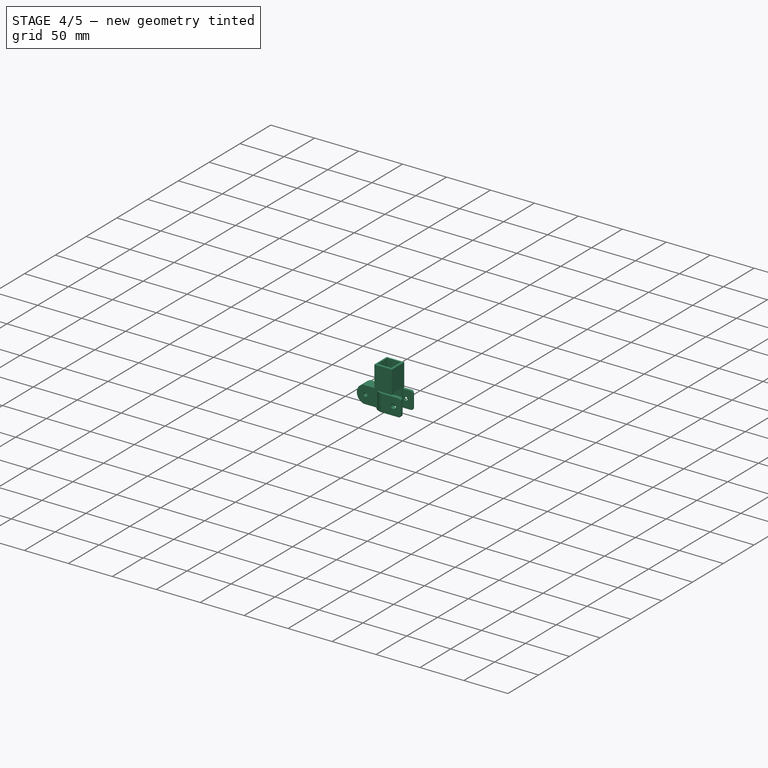
[diagram: stage 4 of 5 — iso view after this stage's code; geometry added in this stage tinted green]
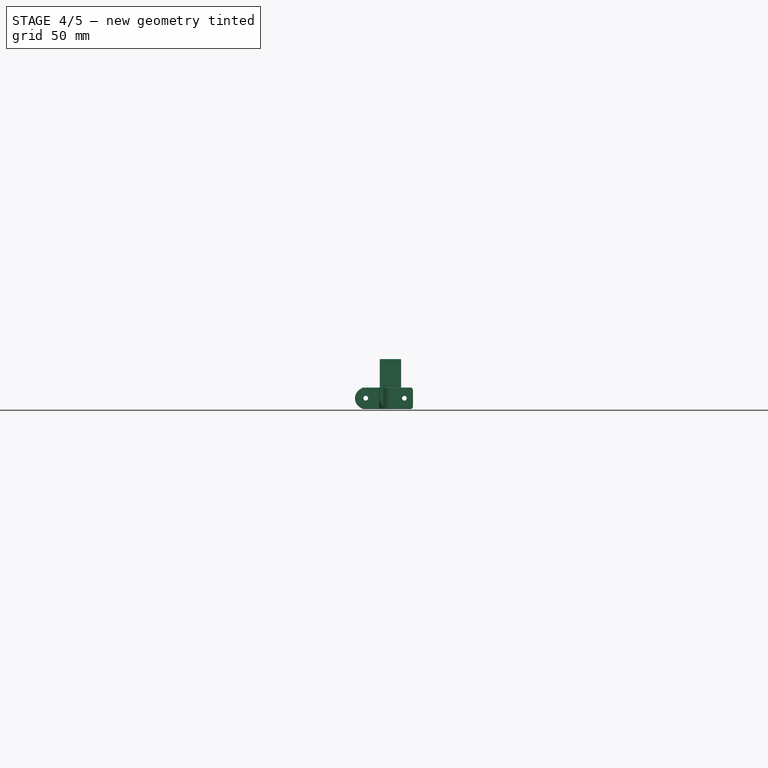
[diagram: stage 4 of 5 — front view after this stage's code; geometry added in this stage tinted green]
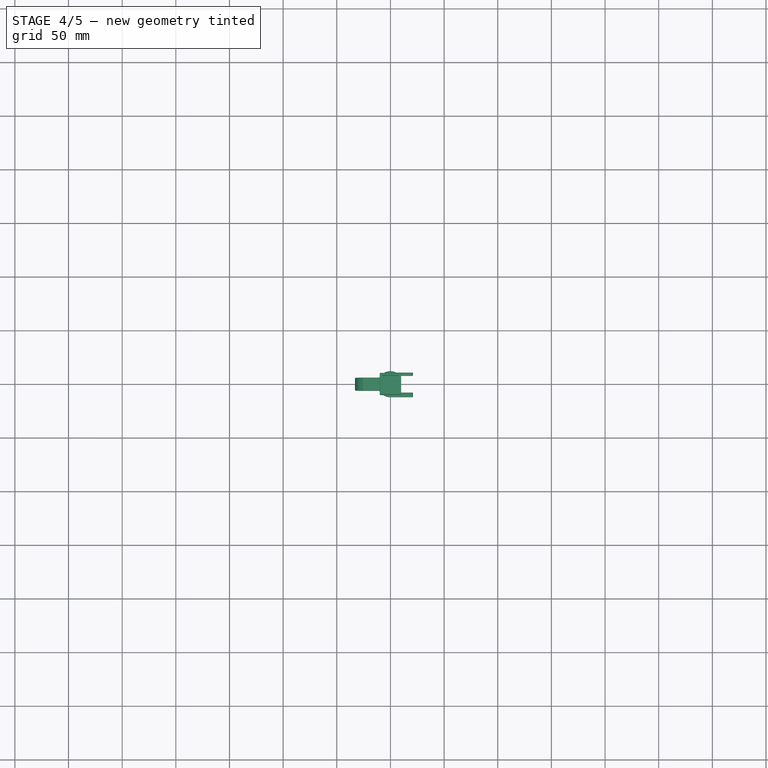
[diagram: stage 4 of 5 — top view after this stage's code; geometry added in this stage tinted green]
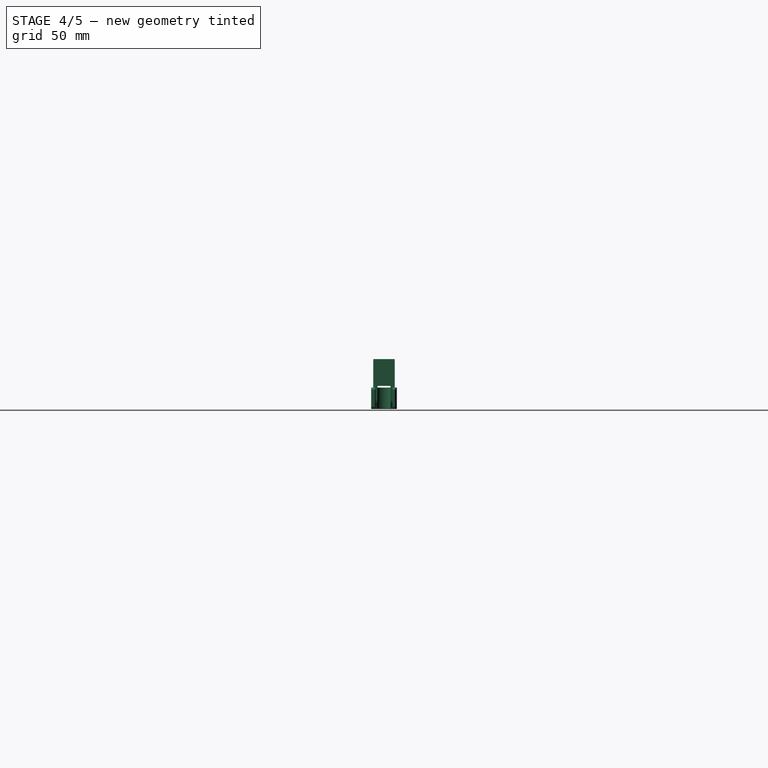
[diagram: stage 4 of 5 — right view after this stage's code; geometry added in this stage tinted green]
FEATURE [PartDesign::PolarPattern] PolarPattern005  label="SideArm_Outer_GripCylinder"
  Angle = 360
  Axis = -> Z_Axis113
  BaseFeature = -> Cylinder015
  Occurrences = 4
  Originals = -> [Cylinder014,Cylinder015]
  Placement = pos=(7.75,2.5,15) rot=(0,0,1;0rad)
FEATURE [PartDesign::Pocket] Pocket189  label="SideArm_Outer_Nut"
  BaseFeature = -> PolarPattern005
  Direction = (0,1,2e-16)
  Length = 4
  Length2 = 100
  Placement = pos=(7.75,2.5,15) rot=(0,0,1;0rad)
  Profile = -> Sketch271
  Type = 0
FEATURE [PartDesign::CoordinateSystem] SideArm_Pivot_Tilt
  AttachedBy = Origin
  AttacherType = Attacher::AttachEngine3D
  Placement = pos=(0,0,0) rot=(0,1,0;3.58218rad)
  SolverId = Asm4EE
  expr: Placement = SideArm_Pivot_Lower.Placement * Local_CS317.Placement
FEATURE [App::Part] Assembly
  AssemblyType = Part::Link
  DrawingName = BracePole.FCStd
  Group = -> [LCS_Origin,Constraints,Variables,Configurations,SideArm_Pivot_Lower,SideArm_Pole,SideArm_Pivot_Upper,SideArm_PoleClamp,Insert_M4_Short_LowerPivot,Insert_M4_Short_UpperPivot,Insert_M4_Short_Clamp,GBT834_M4x25_Clamp,Screw,Screw001,SideArm_Pivot_Tilt]
  Origin = -> Origin
  PartID = BracePole
  Type = Assembly
FEATURE [PartDesign::Chamfer] Chamfer  label="SideArm_Outer_Chamfer"
  Angle = 45
  Base = -> Pocket189 [Edge41,Edge40,Edge38,Edge39]
  BaseFeature = -> Pocket189
  ChamferType = 0
  FlipDirection = false
  Placement = pos=(7.75,2.5,15) rot=(0,0,1;0rad)
  Size = 0.4
  Size2 = 1
  SupportTransform = false
  UseAllEdges = false
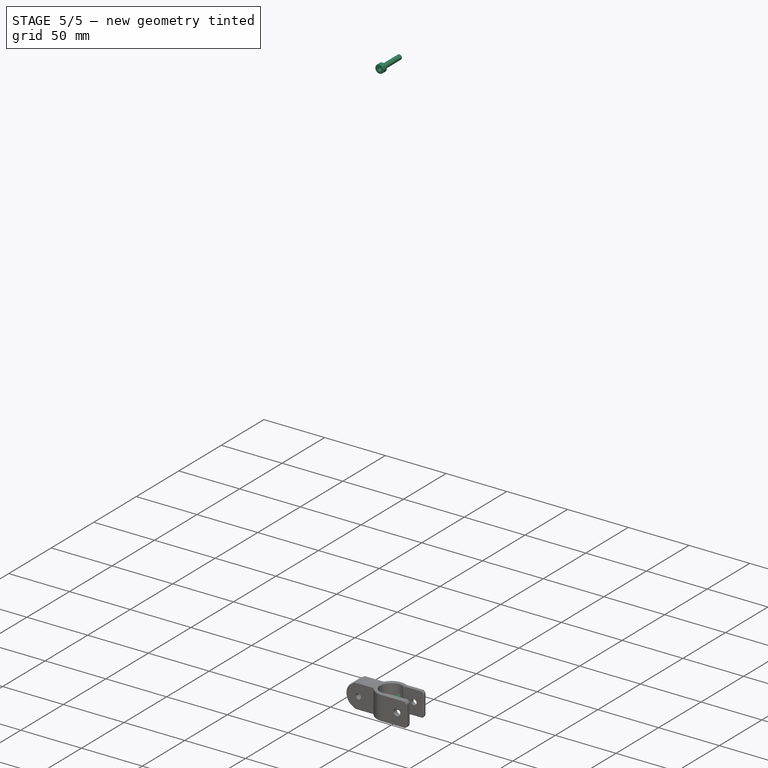
[diagram: stage 5 of 5 — iso view after this stage's code; geometry added in this stage tinted green]
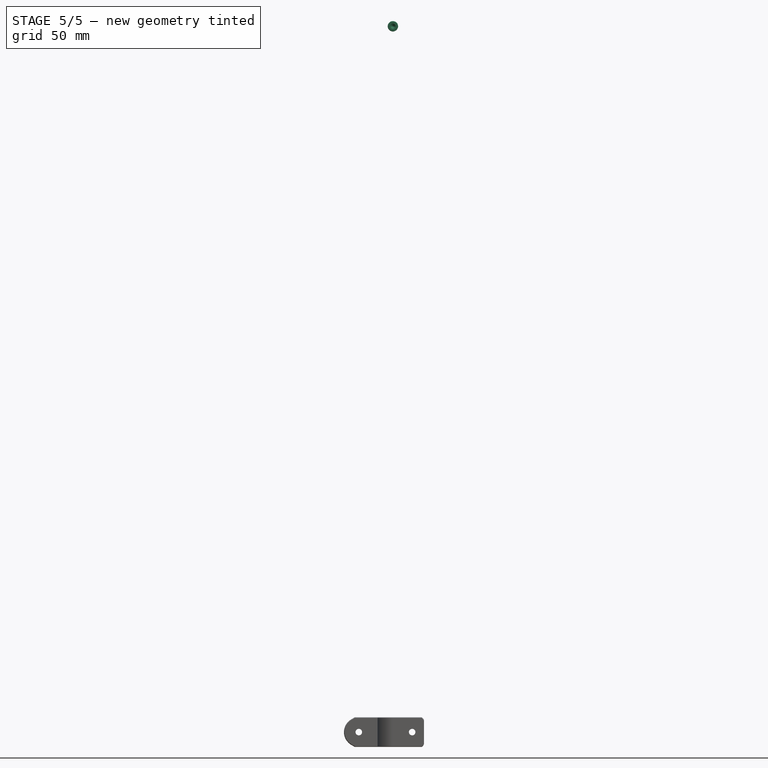
[diagram: stage 5 of 5 — front view after this stage's code; geometry added in this stage tinted green]
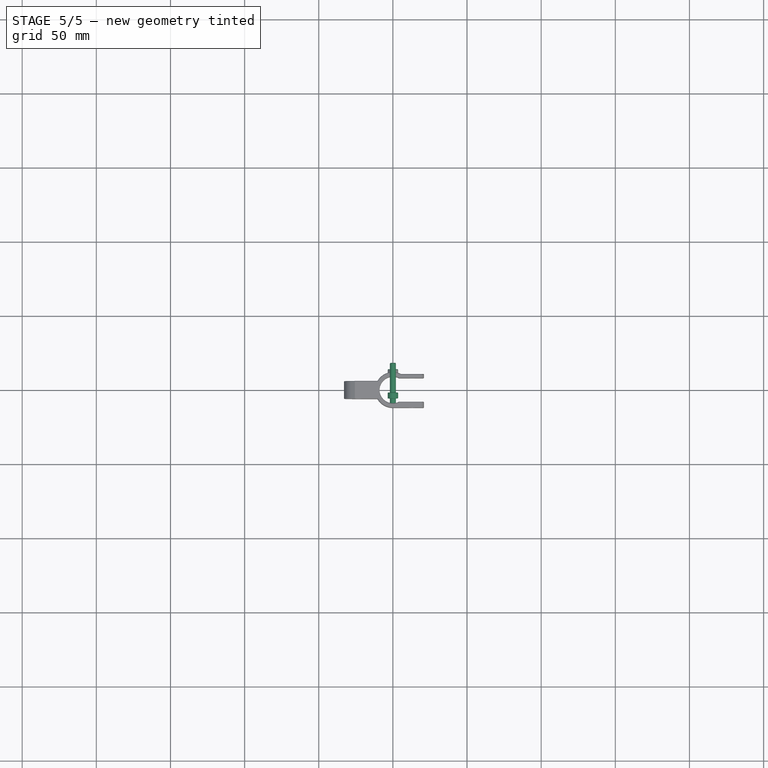
[diagram: stage 5 of 5 — top view after this stage's code; geometry added in this stage tinted green]
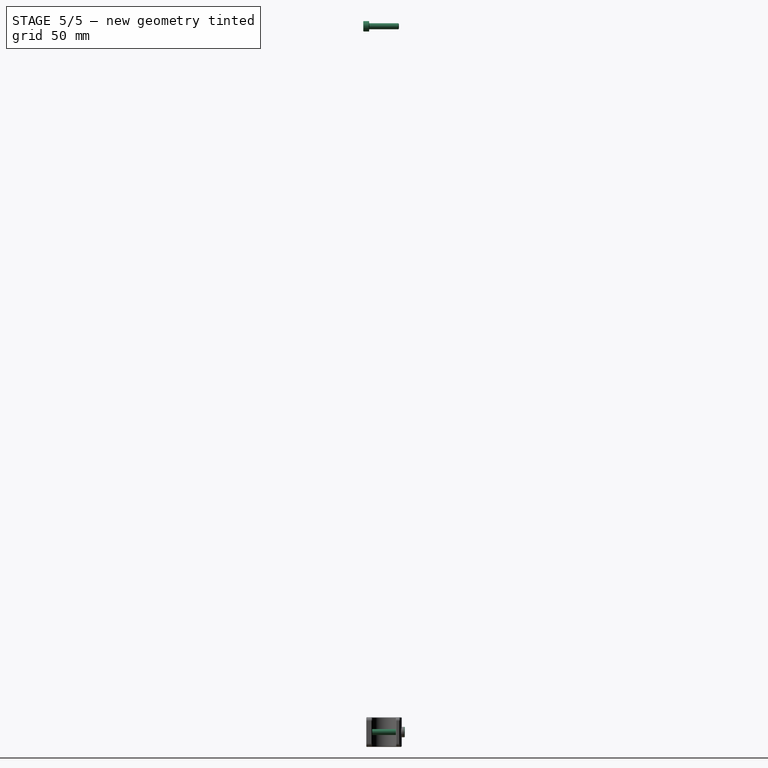
[diagram: stage 5 of 5 — right view after this stage's code; geometry added in this stage tinted green]
FEATURE [PartDesign::AdditiveBox] Box003  label="SideArm_Pole_Base"
  AttacherType = Attacher::AttachEngine3D
  AttachmentOffset = pos=(-7.5,-7.5,0) rot=(0,0,1;0rad)
  Height = 450
  Length = 15
  MapMode = 5
  Placement = pos=(-7.5,-7.5,0) rot=(0,0,1;0rad)
  Support = -> [XY_Plane093]
  Width = 15
  expr: .AttachmentOffset.Base.x = -<<Common>>#<<Parameters>>.pri_bracepole / 2
  expr: .AttachmentOffset.Base.y = -<<Common>>#<<Parameters>>.pri_bracepole / 2
  expr: Height = <<Common>>#<<Parameters>>.pri_bracelength
  expr: Length = <<Common>>#<<Parameters>>.pri_bracepole
  expr: Width = <<Common>>#<<Parameters>>.pri_bracepole
FEATURE [PartDesign::CoordinateSystem] LCS_Origin
  AttacherType = Attacher::AttachEngine3D
  MapMode = 2
  Support = -> [X_Axis]
FEATURE [App::DocumentObjectGroup] Constraints
FEATURE [App::FeaturePython] Variables  # WARN: FeaturePython — macro-defined, semantics opaque (R4)
  Type = App::PropertyContainer
FEATURE [App::DocumentObjectGroup] Configurations
FEATURE [App::Link] SideArm_Pivot_Lower
  AttachedBy = #Local_CS315
  AttachedTo = Parent Assembly#LCS_Origin
  AttachmentOffset = pos=(0,0,0) rot=(0,1,0;3.14159rad)
  LinkedObject = -> Body022059
  SolverId = Asm4EE
  expr: Placement = LCS_Origin.Placement * AttachmentOffset * Local_CS315.Placement ^ -1
FEATURE [App::Link] SideArm_Pole  label="SideArm_Pole001"
  AttachedBy = #Local_CS310
  AttachedTo = SideArm_Pivot_Lower#Local_CS315
  AttachmentOffset = pos=(0,0,-13) rot=(0,1,0;3.14159rad)
  LinkPlacement = pos=(0,0,13) rot=(0,0,1;0rad)
  LinkedObject = -> Body022041
  Placement = pos=(0,0,13) rot=(0,0,1;0rad)
  SolverId = Asm4EE
  expr: Placement = SideArm_Pivot_Lower.Placement * Local_CS315.Placement * AttachmentOffset * Local_CS310.Placement ^ -1
FEATURE [App::Link] SideArm_Pivot_Upper
  AttachedBy = #Local_CS315
  AttachedTo = SideArm_Pole#Local_CS311
  AttachmentOffset = pos=(0,0,-13) rot=(1,0,0;3.14159rad)
  LinkPlacement = pos=(-5.67e-14,0,476) rot=(1,0,0;3.14159rad)
  LinkedObject = -> Body022059
  Placement = pos=(-5.67e-14,0,476) rot=(1,0,0;3.14159rad)
  SolverId = Asm4EE
  expr: Placement = SideArm_Pole.Placement * Local_CS311.Placement * AttachmentOffset * Local_CS315.Placement ^ -1
FEATURE [App::Link] SideArm_PoleClamp  label="SideArm_PoleClamp001"
  AttachedBy = #Local_CS268
  AttachedTo = SideArm_Pivot_Upper#Local_CS316
  AttachmentOffset = pos=(0,0,0) rot=(0,1,0;1.5708rad)
  LinkPlacement = pos=(-20.8035,1.38e-14,485.809) rot=(0,-1,0;2.701rad)
  LinkedObject = -> Body022042
  Placement = pos=(-20.8035,1.38e-14,485.809) rot=(0,-1,0;2.701rad)
  SolverId = Asm4EE
  expr: Placement = SideArm_Pivot_Upper.Placement * Local_CS316.Placement * AttachmentOffset * Local_CS268.Placement ^ -1
FEATURE [PartDesign::CoordinateSystem] Local_CS  label="LCS_SideArm_Outer_Nut"
  AttacherType = Attacher::AttachEngine3D
  MapMode = 11
  Placement = pos=(0,-10,-2e-15) rot=(0.57735,-0.57735,-0.57735;4.18879rad)
  Support = -> [Pocket189]
FEATURE [PartDesign::CoordinateSystem] Local_CS318  label="LCS_SideArm_Outer_Screw"
  AttacherType = Attacher::AttachEngine3D
  MapMode = 11
  Placement = pos=(-9e-16,10,0) rot=(0.57735,-0.57735,-0.57735;4.18879rad)
  Support = -> [Pocket189]
FEATURE [PartDesign::CoordinateSystem] Local_CS319  label="LCS_SideArm_Outer_Pivot"
  AttacherType = Attacher::AttachEngine3D
  MapMode = 45
  Placement = pos=(1.21e-14,-0.72,1.5e-15) rot=(0.707107,0,0.707106;3.14159rad)
  Support = -> [Pocket189]
FEATURE [PartDesign::CoordinateSystem] Local_CS320  label="LCS_SideClamp_Nut"
  AttacherType = Attacher::AttachEngine3D
  MapMode = 11
  Placement = pos=(13,-12,-2.7e-15) rot=(-0.57735,0.57735,0.57735;2.0944rad)
  Support = -> [Pocket126]
FEATURE [App::Link] Insert_M4_Short_LowerPivot
  AttachedBy = #Local_CS318
  AttachedTo = SideArm_Pivot_Lower#Local_CS
  LinkPlacement = pos=(-6e-16,-6,-1.9e-15) rot=(1,0,0;1.5708rad)
  LinkedObject = -> <external Common.FCStd>#Body022061
  Placement = pos=(-6e-16,-6,-1.9e-15) rot=(1,0,0;1.5708rad)
  SolverId = Asm4EE
  expr: Placement = SideArm_Pivot_Lower.Placement * Local_CS.Placement * AttachmentOffset * Common#Local_CS318.Placement ^ -1
FEATURE [App::Link] Insert_M4_Short_UpperPivot
  AttachedBy = #Local_CS318
  AttachedTo = SideArm_Pivot_Upper#Local_CS
  LinkPlacement = pos=(-5.58e-14,6,476) rot=(1,0,0;4.71239rad)
  LinkedObject = -> <external Common.FCStd>#Body022061
  Placement = pos=(-5.58e-14,6,476) rot=(1,0,0;4.71239rad)
  SolverId = Asm4EE
  expr: Placement = SideArm_Pivot_Upper.Placement * Local_CS.Placement * AttachmentOffset * Common#Local_CS318.Placement ^ -1
FEATURE [App::Link] Insert_M4_Short_Clamp
  AttachedBy = #Local_CS318
  AttachedTo = SideArm_PoleClamp#Local_CS320
  LinkPlacement = pos=(-32.562,-8,491.353) rot=(0.156392,-0.698406,0.698406;2.83132rad)
  LinkedObject = -> <external Common.FCStd>#Body022061
  Placement = pos=(-32.562,-8,491.353) rot=(0.156392,-0.698406,0.698406;2.83132rad)
  SolverId = Asm4EE
  expr: Placement = SideArm_PoleClamp.Placement * Local_CS320.Placement * AttachmentOffset * Common#Local_CS318.Placement ^ -1
FEATURE [App::Link] GBT834_M4x25_Clamp
  AttachedBy = #Local_CS237
  AttachedTo = SideArm_PoleClamp#Local_CS269
  LinkPlacement = pos=(-32.562,10.6667,491.353) rot=(-0.156392,-0.698406,-0.698406;2.83132rad)
  LinkedObject = -> <external Common.FCStd>#Body005
  Placement = pos=(-32.562,10.6667,491.353) rot=(-0.156392,-0.698406,-0.698406;2.83132rad)
  SolverId = Asm4EE
  expr: Placement = SideArm_PoleClamp.Placement * Local_CS269.Placement * AttachmentOffset * Common#Local_CS237.Placement ^ -1
FEATURE [Part::FeaturePython] Screw  label="M4x20-Screw"  # Fasteners workbench fastener (typed FeaturePython)
  AttachedBy = Origin
  AttachedTo = SideArm_Pivot_Upper#Local_CS318
  Placement = pos=(-6e-14,-10,476) rot=(-0.57735,0.57735,-0.57735;4.18879rad)
  SolverId = Asm4EE
  diameter = 5
  invert = false
  leftHanded = false
  length = 6
  lengthCustom = 20
  matchOuter = false
  offset = 0
  thread = false
  type = 45
  expr: Placement = SideArm_Pivot_Upper.Placement * Local_CS318.Placement * AttachmentOffset
FEATURE [Part::FeaturePython] Screw001  label="M4x20-Screw001"  # Fasteners workbench fastener (typed FeaturePython)
  AttachedBy = Origin
  AttachedTo = SideArm_Pivot_Lower#Local_CS318
  Placement = pos=(-1e-15,10,4e-15) rot=(0.57735,-0.57735,-0.57735;4.18879rad)
  SolverId = Asm4EE
  diameter = 5
  invert = false
  leftHanded = false
  length = 6
  lengthCustom = 20
  matchOuter = false
  offset = 0
  thread = false
  type = 45
  expr: Placement = SideArm_Pivot_Lower.Placement * Local_CS318.Placement * AttachmentOffset
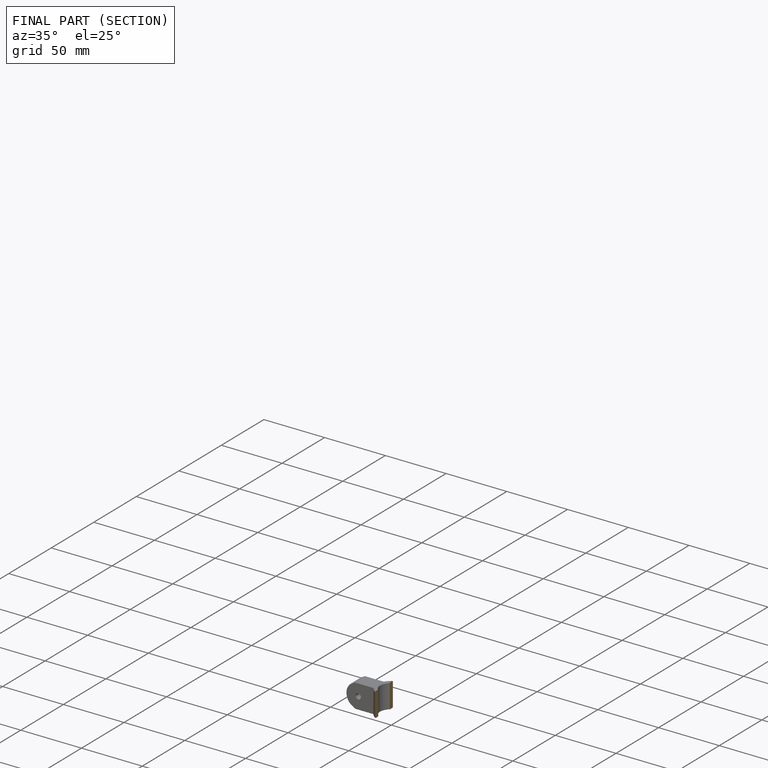
[diagram: finished part — half-section view (interior)]
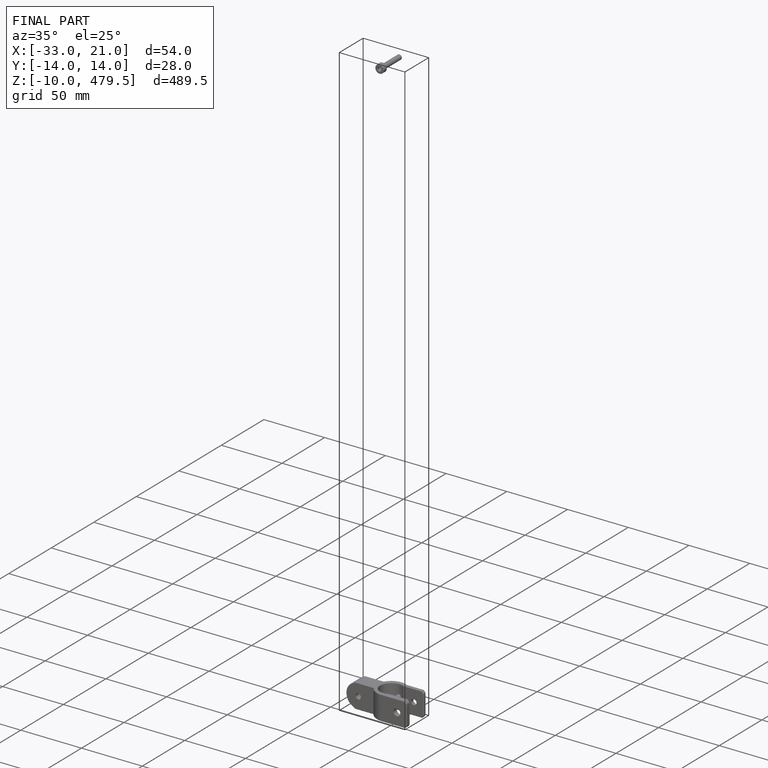
[diagram: finished part — iso view with bounding-box wireframe]
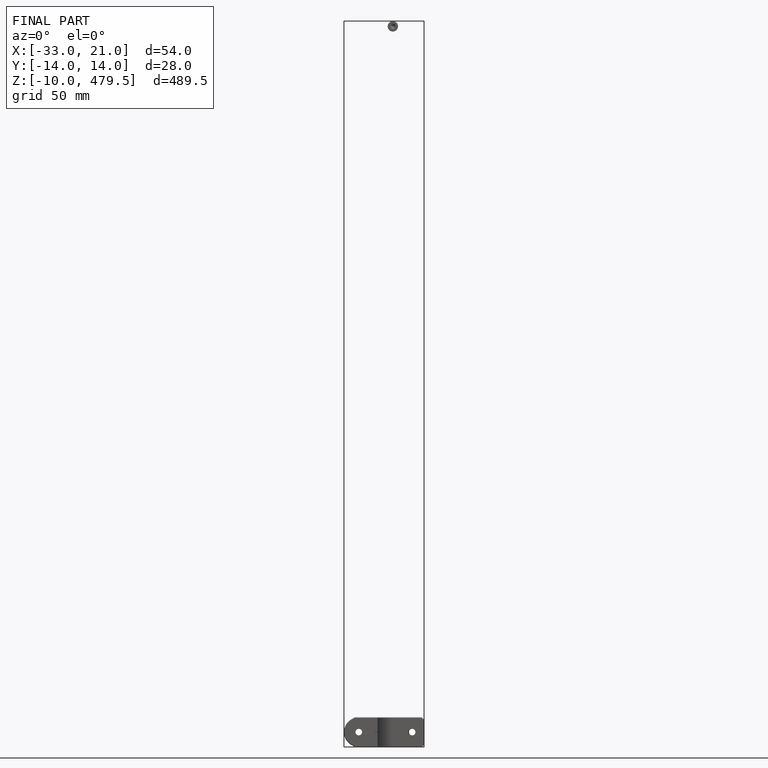
[diagram: finished part — front view with bounding-box wireframe]
